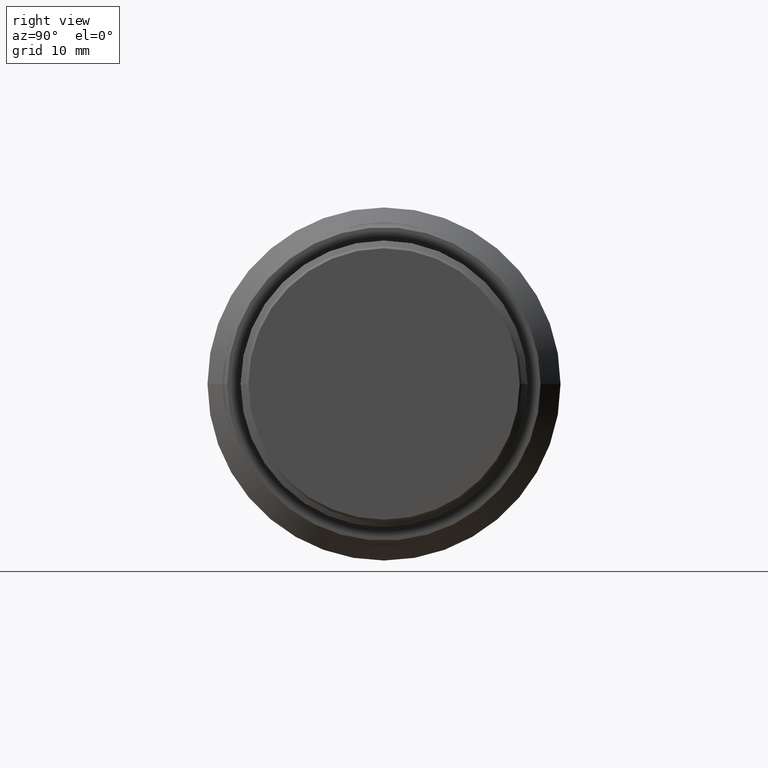
[diagram: clean part render]
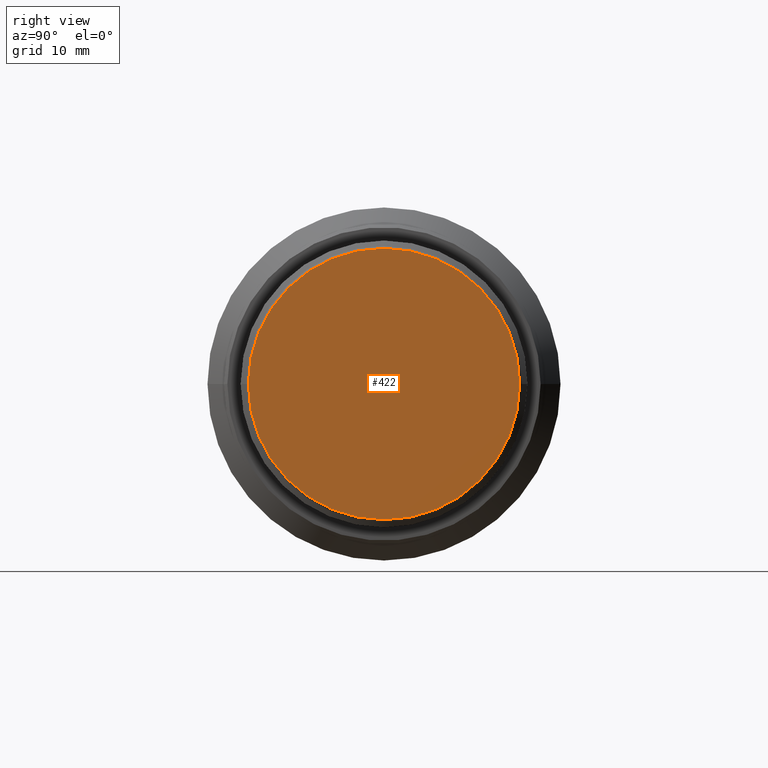
[diagram: same view with one face highlighted and labeled with its STEP entity id]
A machine part, right view. The second image highlights one B-rep face of the part: STEP entity #422.
In plain terms, the highlighted planar face has unit normal (1, 0, 0).
Its self-contained STEP definition (entity closure, byte-faithful):
#20 = DIRECTION ( 'NONE',  ( 0.000000000000000000, 1.000000000000000000, 0.000000000000000000 ) ) ;
#126 = DIRECTION ( 'NONE',  ( 1.000000000000000000, 0.000000000000000000, 0.000000000000000000 ) ) ;
#222 = CARTESIAN_POINT ( 'NONE',  ( 49.39877200000000101, 7.531577814756219106E-16, 6.150000000000000355 ) ) ;
#241 = FACE_OUTER_BOUND ( 'NONE', #894, .T. ) ;
#351 = CARTESIAN_POINT ( 'NONE',  ( 49.39877200000000101, 0.000000000000000000, 0.000000000000000000 ) ) ;
#422 = ADVANCED_FACE ( 'NONE', ( #241 ), #1314, .T. ) ;
#456 = EDGE_CURVE ( 'NONE', #778, #840, #528, .T. ) ;
#528 = CIRCLE ( 'NONE', #1044, 12.30000000000000071 ) ;
#564 = DIRECTION ( 'NONE',  ( 1.000000000000000000, 0.000000000000000000, 0.000000000000000000 ) ) ;
#663 = DIRECTION ( 'NONE',  ( 0.000000000000000000, 1.224646799147350002E-16, 1.000000000000000000 ) ) ;
#692 = AXIS2_PLACEMENT_3D ( 'NONE', #1095, #564, #663 ) ;
#738 = CIRCLE ( 'NONE', #692, 12.30000000000000071 ) ;
#778 = VERTEX_POINT ( 'NONE', #971 ) ;
#840 = VERTEX_POINT ( 'NONE', #1039 ) ;
#894 = EDGE_LOOP ( 'NONE', ( #1006, #1214 ) ) ;
#935 = AXIS2_PLACEMENT_3D ( 'NONE', #222, #126, #20 ) ;
#961 = EDGE_CURVE ( 'NONE', #840, #778, #738, .T. ) ;
#971 = CARTESIAN_POINT ( 'NONE',  ( 49.39877200000000101, 1.506315562951239877E-15, 12.30000000000000071 ) ) ;
#1000 = DIRECTION ( 'NONE',  ( 1.000000000000000000, 0.000000000000000000, 0.000000000000000000 ) ) ;
#1006 = ORIENTED_EDGE ( 'NONE', *, *, #961, .T. ) ;
#1039 = CARTESIAN_POINT ( 'NONE',  ( 49.39877200000000101, 0.000000000000000000, -12.30000000000000071 ) ) ;
#1044 = AXIS2_PLACEMENT_3D ( 'NONE', #351, #1000, #1326 ) ;
#1095 = CARTESIAN_POINT ( 'NONE',  ( 49.39877200000000101, 0.000000000000000000, 0.000000000000000000 ) ) ;
#1214 = ORIENTED_EDGE ( 'NONE', *, *, #456, .T. ) ;
#1314 = PLANE ( 'NONE',  #935 ) ;
#1326 = DIRECTION ( 'NONE',  ( 0.000000000000000000, 1.224646799147350002E-16, 1.000000000000000000 ) ) ;